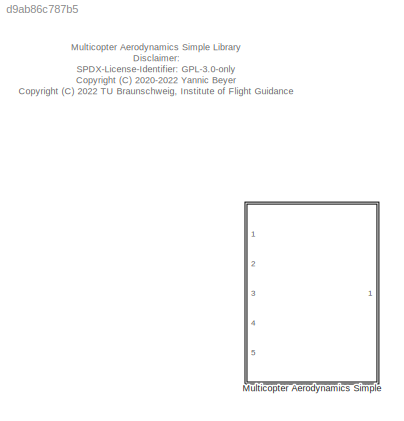
MODEL slx_d9ab86c787b5
KIND library
CONFIG AbsTol = auto
CONFIG EnableMultiTasking = off
CONFIG FixedStep = auto
CONFIG MaxStep = auto
CONFIG MinStep = auto
CONFIG RelTol = 1e-3
CONFIG SampleTimeConstraint = Unconstrained
CONFIG Solver = VariableStepAuto
CONFIG SolverName = VariableStepAuto
CONFIG StartTime = 0.0
CONFIG StopTime = 10.0
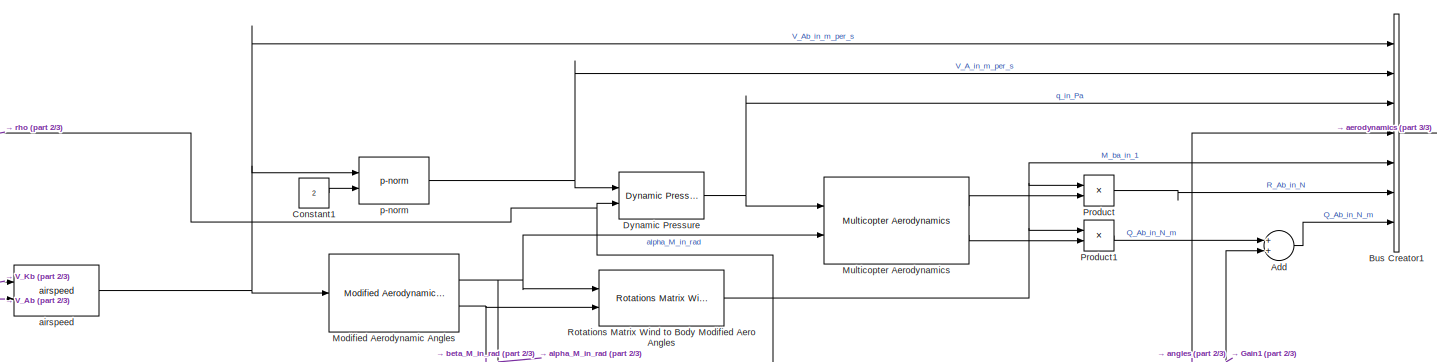
[diagram: Multicopter Aerodynamics Simple - part 1/3, central region]
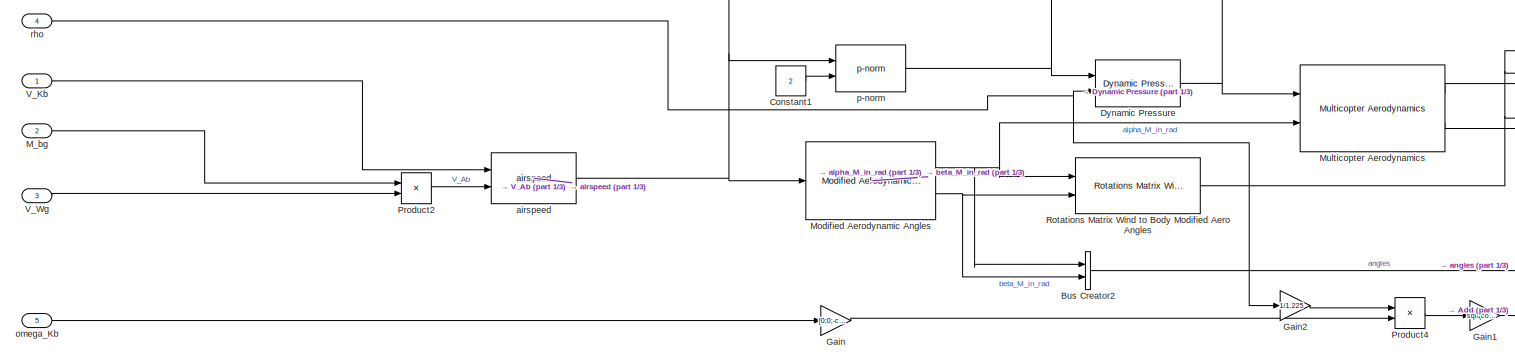
[diagram: Multicopter Aerodynamics Simple - part 2/3, full width, middle band]
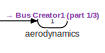
[diagram: Multicopter Aerodynamics Simple - part 3/3, top right region]
BLOCK [SubSystem] Multicopter Aerodynamics Simple
  Ports = [5, 1]
  RequestExecContextInheritance = off
BLOCK [Sum] Multicopter Aerodynamics Simple/Add
  InputSameDT = off
  OutDataTypeStr = Inherit: Inherit via internal rule
  Ports = [2, 1]
  SaturateOnIntegerOverflow = off
BLOCK [BusCreator] Multicopter Aerodynamics Simple/Bus Creator1
  DisplayOption = bar
  InheritFromInputs = on
  Inputs = 7
  Ports = [7, 1]
BLOCK [BusCreator] Multicopter Aerodynamics Simple/Bus Creator2
  DisplayOption = bar
  InheritFromInputs = on
  Inputs = 2
  Ports = [2, 1]
BLOCK [Constant] Multicopter Aerodynamics Simple/Constant1
  Value = 2
BLOCK [Reference] Multicopter Aerodynamics Simple/Dynamic Pressure  REF=flight_parameters_lib/Dynamic Pressure  (lib defined in slx_01e6108afe6f)
  Ports = [2, 1]
  SourceBlock = flight_parameters_lib/Dynamic Pressure
  SourceProductName = LADAC
BLOCK [Gain] Multicopter Aerodynamics Simple/Gain
  Gain = [0;0;-copter.aero.rate_damp]
  OutDataTypeStr = Inherit: Inherit via internal rule
  ParamDataTypeStr = Inherit: Inherit via internal rule
  SaturateOnIntegerOverflow = off
BLOCK [Gain] Multicopter Aerodynamics Simple/Gain1
  Gain = sqrt(copter.aero.S)*copter.aero.S
  OutDataTypeStr = Inherit: Inherit via internal rule
  ParamDataTypeStr = Inherit: Inherit via internal rule
  SaturateOnIntegerOverflow = off
BLOCK [Gain] Multicopter Aerodynamics Simple/Gain2
  Gain = 1/1.225
  OutDataTypeStr = Inherit: Inherit via internal rule
  ParamDataTypeStr = Inherit: Inherit via internal rule
  SaturateOnIntegerOverflow = off
BLOCK [Inport] Multicopter Aerodynamics Simple/M_bg
  IconDisplay = Port number
  Port = 2
BLOCK [Reference] Multicopter Aerodynamics Simple/Modified Aerodynamic Angles  REF=flight_parameters_lib/Modified Aerodynamic Angles  (lib defined in slx_01e6108afe6f)
  Ports = [1, 2]
  SourceBlock = flight_parameters_lib/Modified Aerodynamic Angles
  SourceProductName = LADAC
  SourceType = SubSystem
BLOCK [Reference] Multicopter Aerodynamics Simple/Multicopter Aerodynamics  REF=aerodynamics_lib/Multicopter Aerodynamics  (lib defined in slx_420ec517a4db)
  Ports = [2, 2]
  SourceBlock = aerodynamics_lib/Multicopter Aerodynamics
  SourceProductName = LADAC
BLOCK [Product] Multicopter Aerodynamics Simple/Product
  InputSameDT = off
  Multiplication = Matrix(*)
  OutDataTypeStr = Inherit: Inherit via internal rule
  Ports = [2, 1]
  RndMeth = Floor
  SaturateOnIntegerOverflow = off
BLOCK [Product] Multicopter Aerodynamics Simple/Product1
  InputSameDT = off
  Multiplication = Matrix(*)
  OutDataTypeStr = Inherit: Inherit via internal rule
  Ports = [2, 1]
  RndMeth = Floor
  SaturateOnIntegerOverflow = off
BLOCK [Product] Multicopter Aerodynamics Simple/Product2
  InputSameDT = off
  Multiplication = Matrix(*)
  OutDataTypeStr = Inherit: Inherit via internal rule
  Ports = [2, 1]
  RndMeth = Floor
  SaturateOnIntegerOverflow = off
BLOCK [Product] Multicopter Aerodynamics Simple/Product4
  InputSameDT = off
  OutDataTypeStr = Inherit: Inherit via internal rule
  Ports = [2, 1]
  RndMeth = Floor
  SaturateOnIntegerOverflow = off
BLOCK [Reference] Multicopter Aerodynamics Simple/Rotations Matrix Wind to Body Modified Aero Angles  REF=axes_transformation_lib/Rotations Matrix  (lib defined in slx_69e2413c78c0)
Wind to Body
Modified Aero Angles
  Ports = [2, 1]
  SourceBlock = axes_transformation_lib/Rotations Matrix\nWind to Body\nModified Aero Angles
  SourceProductName = LADAC
  SourceType = SubSystem
BLOCK [Inport] Multicopter Aerodynamics Simple/V_Kb
  IconDisplay = Port number
BLOCK [Inport] Multicopter Aerodynamics Simple/V_Wg
  IconDisplay = Port number
  OutDataTypeStr = double
  Port = 3
  PortDimensions = 3
  SamplingMode = Sample based
  SignalType = real
BLOCK [Outport] Multicopter Aerodynamics Simple/aerodynamics
  IconDisplay = Port number
BLOCK [Reference] Multicopter Aerodynamics Simple/airspeed  REF=flight_parameters_lib/airspeed  (lib defined in slx_01e6108afe6f)
  Ports = [2, 1]
  SourceBlock = flight_parameters_lib/airspeed
  SourceProductName = LADAC
BLOCK [Inport] Multicopter Aerodynamics Simple/omega_Kb
  IconDisplay = Port number
  OutDataTypeStr = double
  Port = 5
  PortDimensions = 3
  SamplingMode = Sample based
  SignalType = real
BLOCK [Reference] Multicopter Aerodynamics Simple/p-norm  REF=flight_parameters_lib/p-norm  (lib defined in slx_01e6108afe6f)
  Ports = [2, 1]
  SourceBlock = flight_parameters_lib/p-norm
  SourceProductName = LADAC
  SourceType = SubSystem
BLOCK [Inport] Multicopter Aerodynamics Simple/rho
  IconDisplay = Port number
  OutDataTypeStr = double
  Port = 4
  PortDimensions = 1
  SamplingMode = Sample based
  SignalType = real
ANNOTATION (root): Multicopter Aerodynamics Simple Library Disclaimer: SPDX-License-Identifier: GPL-3.0-only <copyright redacted>
LINE Multicopter Aerodynamics Simple/Add:1 -> Multicopter Aerodynamics Simple/Bus Creator1:7
LINE Multicopter Aerodynamics Simple/Bus Creator1:1 -> Multicopter Aerodynamics Simple/aerodynamics:1
LINE Multicopter Aerodynamics Simple/Bus Creator2:1 -> Multicopter Aerodynamics Simple/Bus Creator1:4
LINE Multicopter Aerodynamics Simple/Constant1:1 -> Multicopter Aerodynamics Simple/p-norm:2
NET Multicopter Aerodynamics Simple/Dynamic Pressure:1 -> Multicopter Aerodynamics Simple/Bus Creator1:3, Multicopter Aerodynamics Simple/Multicopter Aerodynamics:1
LINE Multicopter Aerodynamics Simple/Gain1:1 -> Multicopter Aerodynamics Simple/Add:2
LINE Multicopter Aerodynamics Simple/Gain2:1 -> Multicopter Aerodynamics Simple/Product4:1
LINE Multicopter Aerodynamics Simple/Gain:1 -> Multicopter Aerodynamics Simple/Product4:2
LINE Multicopter Aerodynamics Simple/M_bg:1 -> Multicopter Aerodynamics Simple/Product2:1
NET Multicopter Aerodynamics Simple/Modified Aerodynamic Angles:1 -> Multicopter Aerodynamics Simple/Bus Creator2:1, Multicopter Aerodynamics Simple/Multicopter Aerodynamics:2, Multicopter Aerodynamics Simple/Rotations Matrix Wind to Body Modified Aero Angles:1
NET Multicopter Aerodynamics Simple/Modified Aerodynamic Angles:2 -> Multicopter Aerodynamics Simple/Bus Creator2:2, Multicopter Aerodynamics Simple/Rotations Matrix Wind to Body Modified Aero Angles:2
LINE Multicopter Aerodynamics Simple/Multicopter Aerodynamics:1 -> Multicopter Aerodynamics Simple/Product:2
LINE Multicopter Aerodynamics Simple/Multicopter Aerodynamics:2 -> Multicopter Aerodynamics Simple/Product1:2
LINE Multicopter Aerodynamics Simple/Product1:1 -> Multicopter Aerodynamics Simple/Add:1
LINE Multicopter Aerodynamics Simple/Product2:1 -> Multicopter Aerodynamics Simple/airspeed:2
LINE Multicopter Aerodynamics Simple/Product4:1 -> Multicopter Aerodynamics Simple/Gain1:1
LINE Multicopter Aerodynamics Simple/Product:1 -> Multicopter Aerodynamics Simple/Bus Creator1:6
NET Multicopter Aerodynamics Simple/Rotations Matrix Wind to Body Modified Aero Angles:1 -> Multicopter Aerodynamics Simple/Bus Creator1:5, Multicopter Aerodynamics Simple/Product1:1, Multicopter Aerodynamics Simple/Product:1
LINE Multicopter Aerodynamics Simple/V_Kb:1 -> Multicopter Aerodynamics Simple/airspeed:1
LINE Multicopter Aerodynamics Simple/V_Wg:1 -> Multicopter Aerodynamics Simple/Product2:2
NET Multicopter Aerodynamics Simple/airspeed:1 -> Multicopter Aerodynamics Simple/Bus Creator1:1, Multicopter Aerodynamics Simple/Modified Aerodynamic Angles:1, Multicopter Aerodynamics Simple/p-norm:1
LINE Multicopter Aerodynamics Simple/omega_Kb:1 -> Multicopter Aerodynamics Simple/Gain:1
NET Multicopter Aerodynamics Simple/p-norm:1 -> Multicopter Aerodynamics Simple/Bus Creator1:2, Multicopter Aerodynamics Simple/Dynamic Pressure:1
NET Multicopter Aerodynamics Simple/rho:1 -> Multicopter Aerodynamics Simple/Dynamic Pressure:2, Multicopter Aerodynamics Simple/Gain2:1
note: NET lines group one-source signal fan-out (src -> all destinations, sorted); 1:1 wires keep LINE
